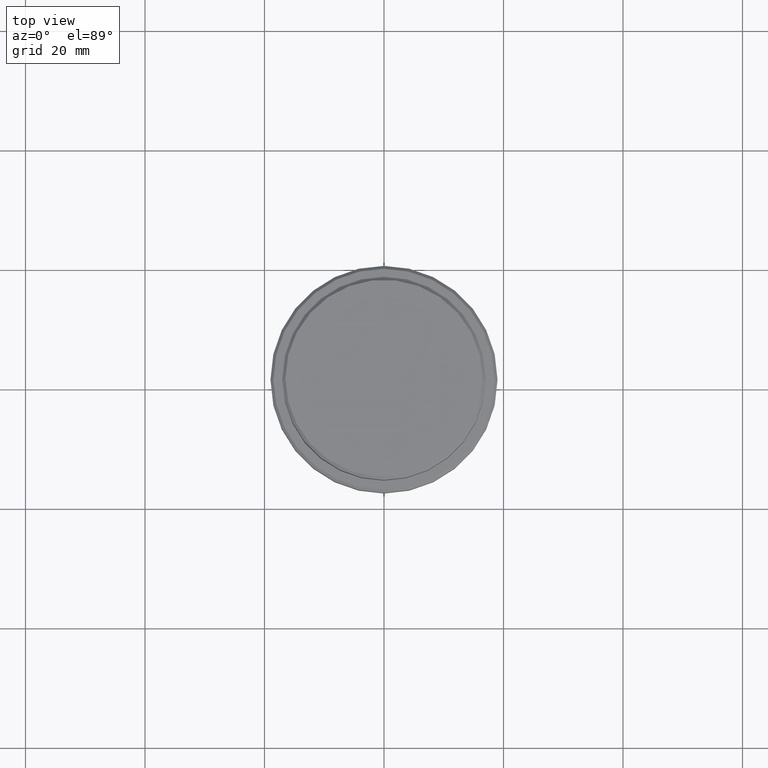
[diagram: clean part render]
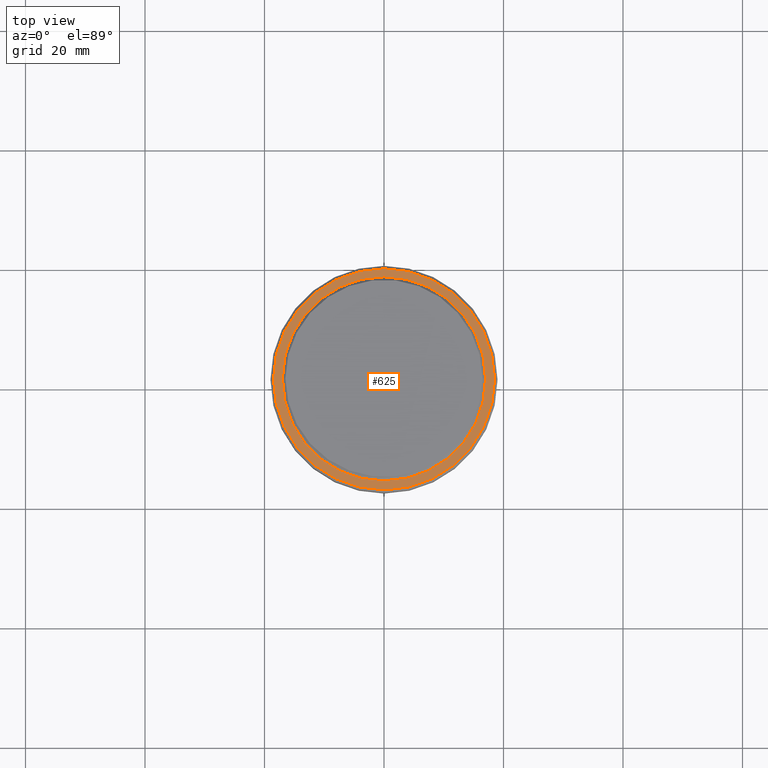
[diagram: same view with one face highlighted and labeled with its STEP entity id]
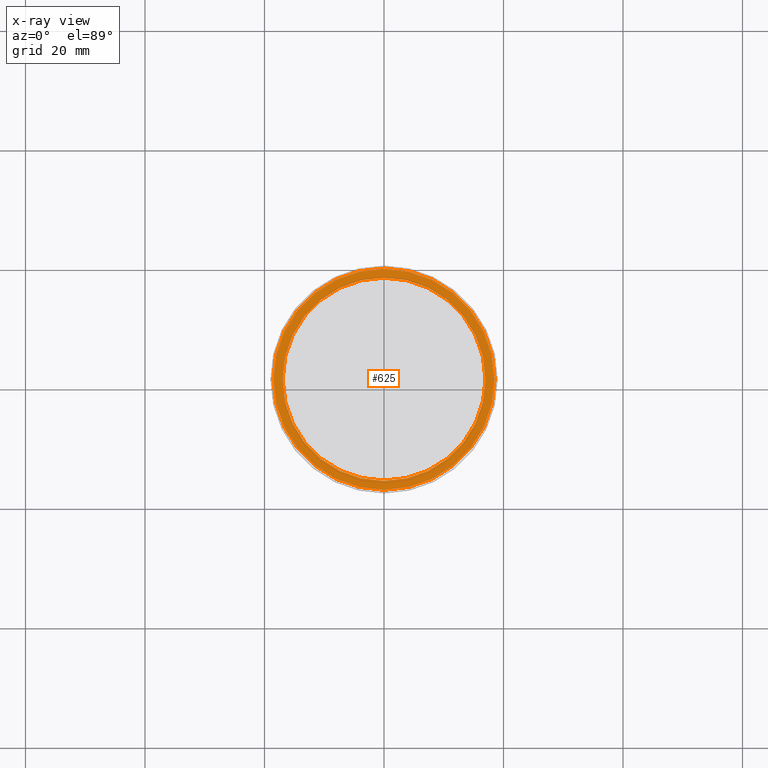
[diagram: x-ray of the same camera — body ghosted, the highlighted face saturated]
A machine part, top view. The second image highlights one B-rep face of the part: STEP entity #625.
The next image is the same camera in x-ray: the body ghosted, the highlighted face saturated — about 0% of this face is hidden behind the body in this view.
In plain terms, the highlighted planar face has unit normal (0, -0, 1).
Its self-contained STEP definition (entity closure, byte-faithful):
#1 = DIRECTION ( 'NONE',  ( 1.000000000000000000, 0.000000000000000000, 0.000000000000000000 ) ) ;
#10 = DIRECTION ( 'NONE',  ( 1.000000000000000000, 0.000000000000000000, 0.000000000000000000 ) ) ;
#40 = FACE_BOUND ( 'NONE', #535, .T. ) ;
#45 = CARTESIAN_POINT ( 'NONE',  ( 0.000000000000000000, 0.000000000000000000, -10.00000000000000178 ) ) ;
#149 = CARTESIAN_POINT ( 'NONE',  ( -16.99999999999998579, 2.081899558550499096E-15, -10.00000000000000178 ) ) ;
#226 = CIRCLE ( 'NONE', #1203, 18.50000000000001776 ) ;
#236 = CARTESIAN_POINT ( 'NONE',  ( 16.99999999999998579, 0.000000000000000000, -10.00000000000000178 ) ) ;
#268 = DIRECTION ( 'NONE',  ( 1.000000000000000000, 0.000000000000000000, 0.000000000000000000 ) ) ;
#278 = DIRECTION ( 'NONE',  ( 0.000000000000000000, 0.000000000000000000, -1.000000000000000000 ) ) ;
#348 = VERTEX_POINT ( 'NONE', #236 ) ;
#432 = DIRECTION ( 'NONE',  ( -0.000000000000000000, -0.000000000000000000, 1.000000000000000000 ) ) ;
#463 = VERTEX_POINT ( 'NONE', #149 ) ;
#471 = AXIS2_PLACEMENT_3D ( 'NONE', #473, #1116, #268 ) ;
#473 = CARTESIAN_POINT ( 'NONE',  ( 0.000000000000000000, 16.49999999999998579, -10.00000000000000178 ) ) ;
#474 = CIRCLE ( 'NONE', #1387, 16.99999999999998579 ) ;
#503 = VERTEX_POINT ( 'NONE', #907 ) ;
#535 = EDGE_LOOP ( 'NONE', ( #641, #998 ) ) ;
#599 = DIRECTION ( 'NONE',  ( 1.000000000000000000, 0.000000000000000000, 0.000000000000000000 ) ) ;
#624 = CARTESIAN_POINT ( 'NONE',  ( 0.000000000000000000, 0.000000000000000000, -10.00000000000000178 ) ) ;
#625 = ADVANCED_FACE ( 'NONE', ( #1135, #40 ), #934, .T. ) ;
#641 = ORIENTED_EDGE ( 'NONE', *, *, #1290, .T. ) ;
#679 = ORIENTED_EDGE ( 'NONE', *, *, #883, .T. ) ;
#704 = AXIS2_PLACEMENT_3D ( 'NONE', #45, #911, #10 ) ;
#727 = CIRCLE ( 'NONE', #704, 18.50000000000001776 ) ;
#734 = EDGE_CURVE ( 'NONE', #900, #503, #226, .T. ) ;
#746 = CARTESIAN_POINT ( 'NONE',  ( 0.000000000000000000, 0.000000000000000000, -10.00000000000000178 ) ) ;
#883 = EDGE_CURVE ( 'NONE', #503, #900, #727, .T. ) ;
#900 = VERTEX_POINT ( 'NONE', #1336 ) ;
#907 = CARTESIAN_POINT ( 'NONE',  ( -18.50000000000001776, 0.000000000000000000, -10.00000000000000178 ) ) ;
#911 = DIRECTION ( 'NONE',  ( -0.000000000000000000, -0.000000000000000000, 1.000000000000000000 ) ) ;
#934 = PLANE ( 'NONE',  #471 ) ;
#956 = ORIENTED_EDGE ( 'NONE', *, *, #734, .T. ) ;
#998 = ORIENTED_EDGE ( 'NONE', *, *, #1148, .T. ) ;
#1075 = DIRECTION ( 'NONE',  ( 1.000000000000000000, 0.000000000000000000, 0.000000000000000000 ) ) ;
#1116 = DIRECTION ( 'NONE',  ( 0.000000000000000000, -0.000000000000000000, 1.000000000000000000 ) ) ;
#1123 = AXIS2_PLACEMENT_3D ( 'NONE', #746, #1194, #1 ) ;
#1135 = FACE_OUTER_BOUND ( 'NONE', #1212, .T. ) ;
#1148 = EDGE_CURVE ( 'NONE', #463, #348, #474, .T. ) ;
#1167 = CARTESIAN_POINT ( 'NONE',  ( 0.000000000000000000, 0.000000000000000000, -10.00000000000000178 ) ) ;
#1194 = DIRECTION ( 'NONE',  ( 0.000000000000000000, 0.000000000000000000, -1.000000000000000000 ) ) ;
#1203 = AXIS2_PLACEMENT_3D ( 'NONE', #624, #432, #1075 ) ;
#1212 = EDGE_LOOP ( 'NONE', ( #679, #956 ) ) ;
#1290 = EDGE_CURVE ( 'NONE', #348, #463, #1363, .T. ) ;
#1336 = CARTESIAN_POINT ( 'NONE',  ( 18.50000000000001776, 2.296212748401287578E-15, -10.00000000000000178 ) ) ;
#1363 = CIRCLE ( 'NONE', #1123, 16.99999999999998579 ) ;
#1387 = AXIS2_PLACEMENT_3D ( 'NONE', #1167, #278, #599 ) ;